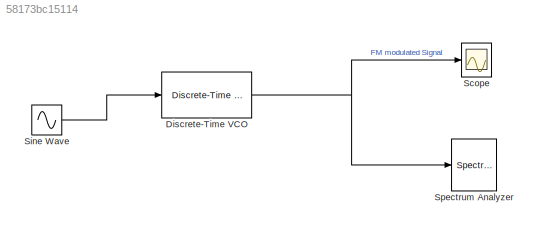
MODEL slx_58173bc15114
KIND model
CONFIG AbsTol = auto
CONFIG EnableMultiTasking = off
CONFIG FixedStep = auto
CONFIG MaxStep = auto
CONFIG MinStep = auto
CONFIG RelTol = 1e-3
CONFIG SampleTimeConstraint = Unconstrained
CONFIG SolverName = VariableStepAuto
CONFIG StartTime = 0.0
CONFIG StopTime = 10
BLOCK [Reference] Discrete-Time VCO  REF=commsynccomp2/Discrete-Time
VCO
  SourceBlock = commsynccomp2/Discrete-Time\nVCO
  SourceType = Discrete-Time VCO
BLOCK [Scope] Scope
  Floating = off
  NumInputPorts = 1
  ScopeSpecificationString = Simulink.scopes.TimeScopeBlockCfg('CurrentConfiguration', extmgr.ConfigurationSet(extmgr.Configuration('Core','General UI',true),extmgr.Configuration('Core','Source UI',true),extmgr.Configuration('Sources','WiredSimulink',true),extmgr.Configuration('Visuals','Time Domain',true,'SerializedDisplays',{struct('MinYLimReal','-1.25027','MaxYLimReal','1.25026','YLabelReal','','MinYLimMag','0.00000','MaxY...<+1476ch>
BLOCK [Sin] Sine Wave
  Frequency = 12566.370614
  SampleTime = 0.00001
BLOCK [SpectrumAnalyzer] Spectrum Analyzer
  ScopeSpecificationString = spbscopes.SpectrumAnalyzerBlockCfg('CurrentConfiguration', extmgr.ConfigurationSet(extmgr.Configuration('Core','General UI',true),extmgr.Configuration('Core','Source UI',true),extmgr.Configuration('Sources','WiredSimulink',true),extmgr.Configuration('Visuals','Spectrum',true,'AxesProperties',struct('Color',{[0 0 0],[0 0 0]},'XColor',{[0.686274509803922 0.686274509803922 0.686274509803922],[0.68627...<+2388ch>
NET Discrete-Time VCO:1 -> Scope:1, Spectrum Analyzer:1
LINE Sine Wave:1 -> Discrete-Time VCO:1
note: NET lines group one-source signal fan-out (src -> all destinations, sorted); 1:1 wires keep LINE
